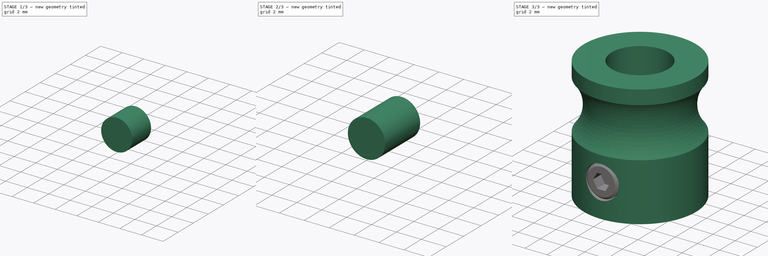
[diagram: build sequence overview — one tinted view per stage of 3, left to right]
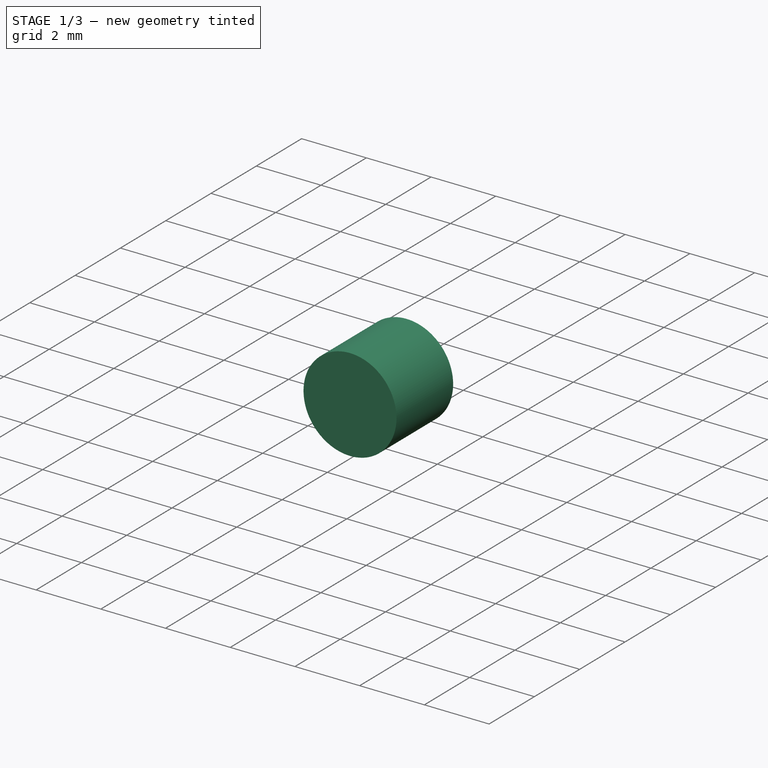
[diagram: stage 1 of 3 — iso view after this stage's code; geometry added in this stage tinted green]
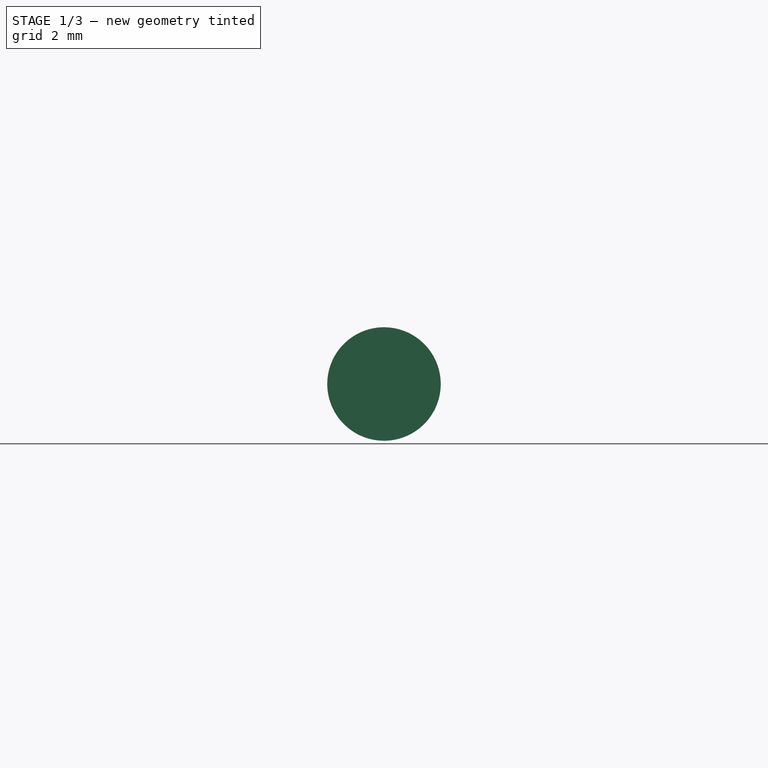
[diagram: stage 1 of 3 — front view after this stage's code; geometry added in this stage tinted green]
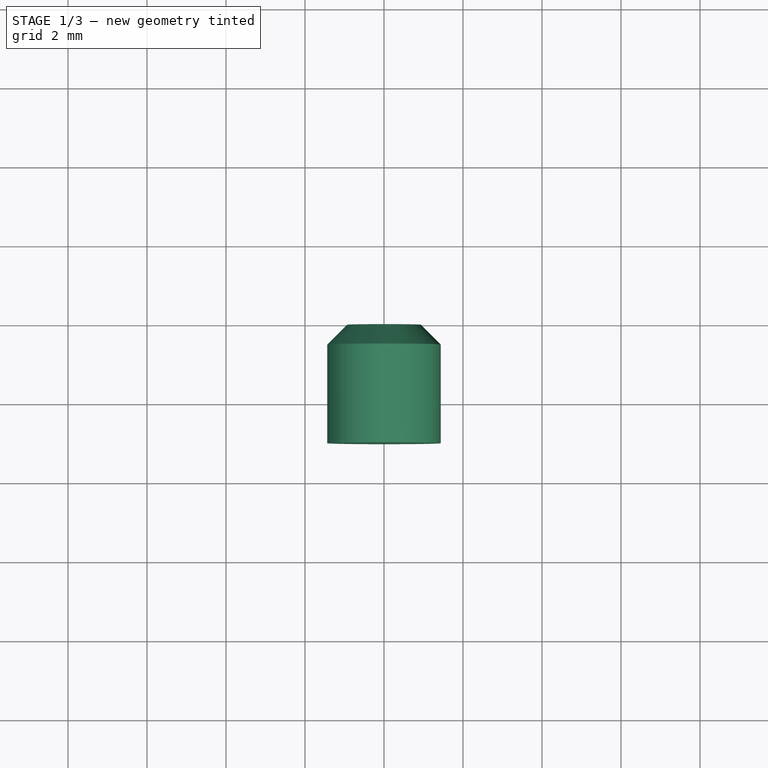
[diagram: stage 1 of 3 — top view after this stage's code; geometry added in this stage tinted green]
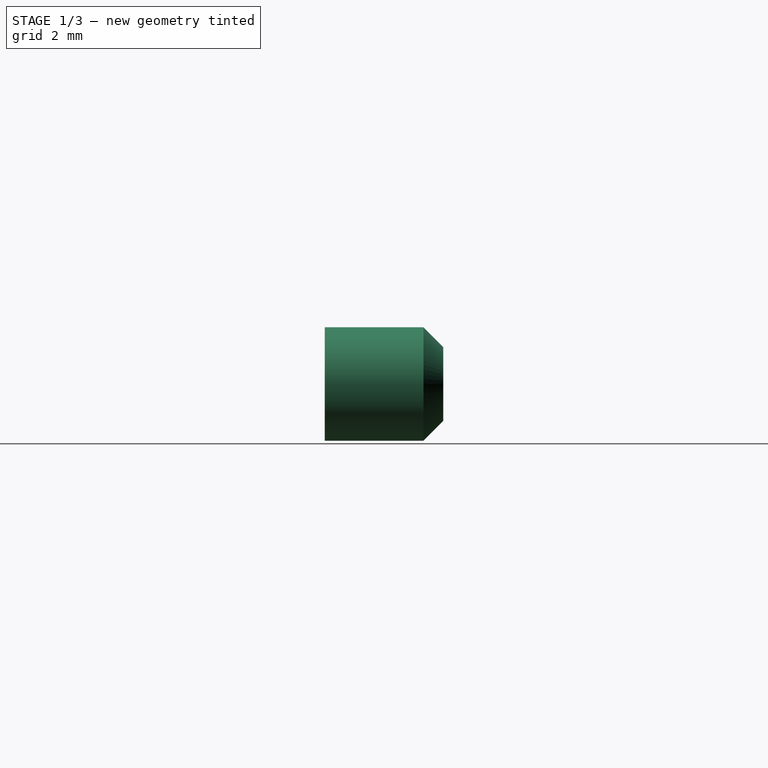
[diagram: stage 1 of 3 — right view after this stage's code; geometry added in this stage tinted green]
FCSTD DOCUMENT  (FreeCAD 0.16R6706 (Git))
Label: feeder_pulley_9mm
License: CreativeCommons Attribution-ShareAlike
LicenseURL: http://creativecommons.org/licenses/by-sa/4.0/
objects: Sketcher::SketchObject×4, PartDesign::Pad×2, PartDesign::Chamfer×2, PartDesign::Revolution×1, Part::Cut×1, PartDesign::Pocket×1
note: 15 computed .brp shape members not serialized (recipe doc carries the construction recipe); baked Part::Feature solids carry a one-line shape summary decoded from their .brp

FEATURE [Sketcher::SketchObject] Sketch
  Placement = pos=(0,-5,52) rot=(-1,0,0;4.71239rad)
  sketch-geometry (1):
    g0: Circle CenterX=0 CenterY=0 CenterZ=0 NormalX=0 NormalY=0 NormalZ=1 Radius=1.43658
  constraints (1):
    c: Coincident(g0,g-1)
FEATURE [PartDesign::Pad] Pad
  Length = 3
  Length2 = 100
  Placement = pos=(0,-5,52) rot=(-1,0,0;4.71239rad)
  Reversed = true
  Sketch = -> Sketch
  Type = 0
FEATURE [PartDesign::Chamfer] Chamfer
  Base = -> Pad [Edge3]
  Placement = pos=(0,-5,52) rot=(-1,0,0;4.71239rad)
  Size = 0.5
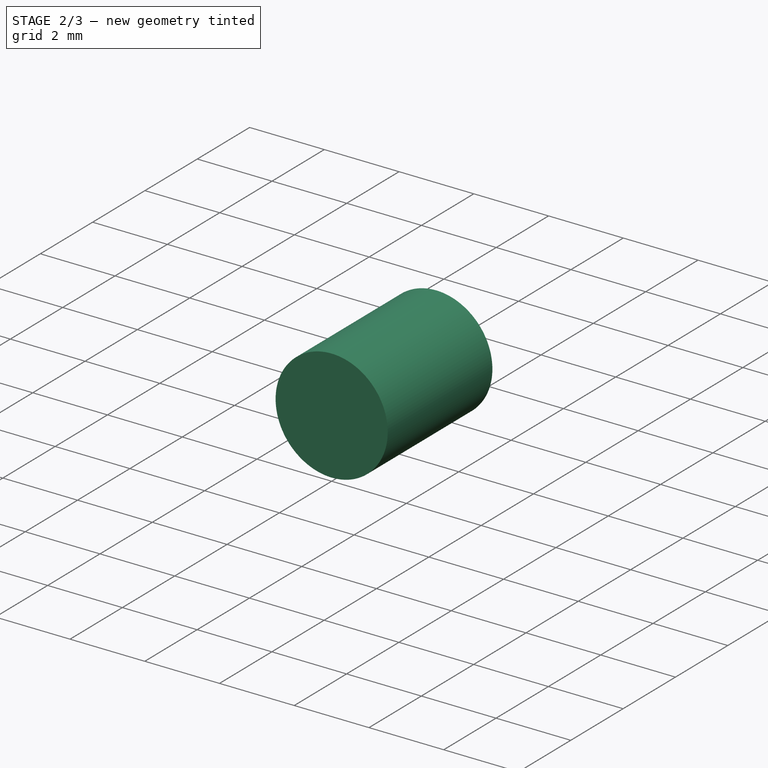
[diagram: stage 2 of 3 — iso view after this stage's code; geometry added in this stage tinted green]
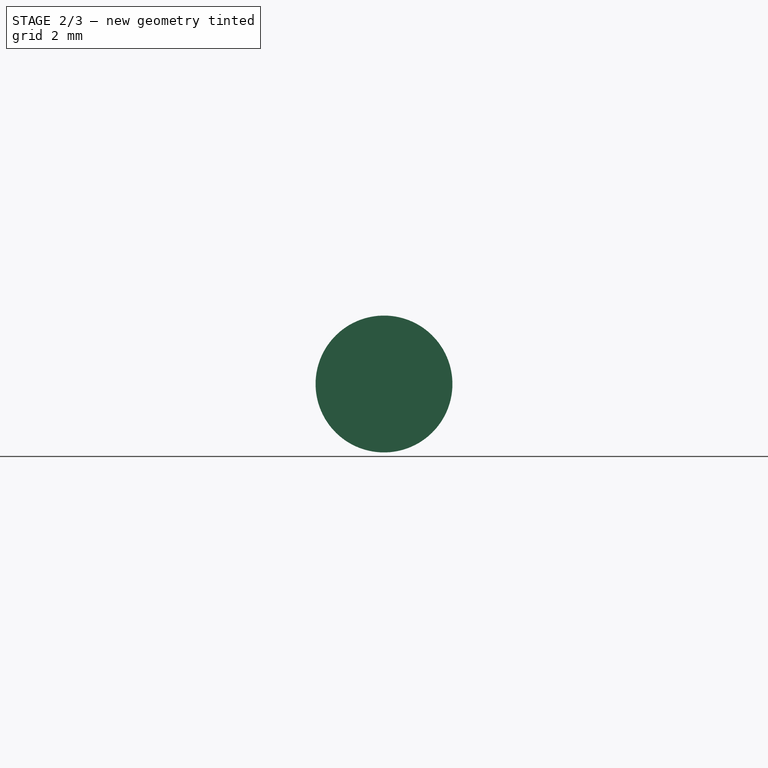
[diagram: stage 2 of 3 — front view after this stage's code; geometry added in this stage tinted green]
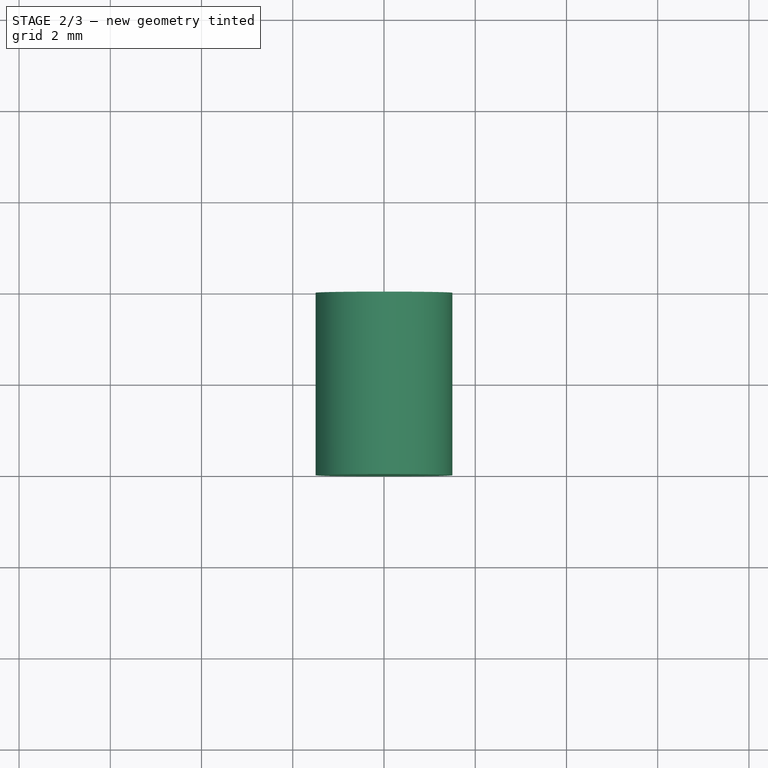
[diagram: stage 2 of 3 — top view after this stage's code; geometry added in this stage tinted green]
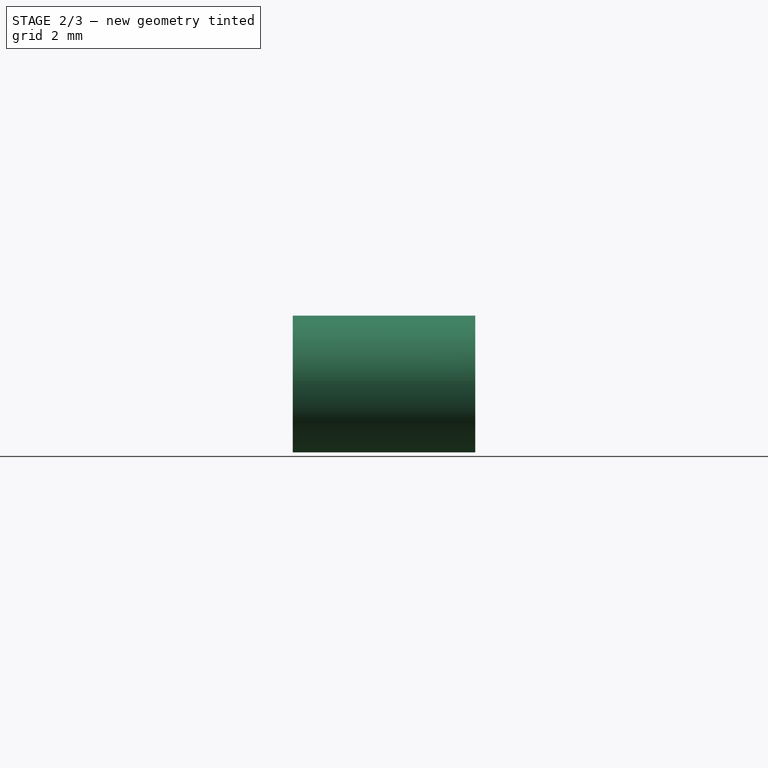
[diagram: stage 2 of 3 — right view after this stage's code; geometry added in this stage tinted green]
FEATURE [Sketcher::SketchObject] Sketch013
  Placement = pos=(0,-6,52) rot=(1,0,0;1.5708rad)
  sketch-geometry (1):
    g0: Circle CenterX=0 CenterY=0 CenterZ=0 NormalX=0 NormalY=0 NormalZ=1 Radius=1.5
  constraints (2):
    c: Coincident(g0,g-1)
    c: Radius(g0) = 1.5
FEATURE [PartDesign::Pad] Pad007
  Length = 4
  Length2 = 100
  Placement = pos=(0,-6,52) rot=(1,0,0;1.5708rad)
  Reversed = true
  Sketch = -> Sketch013
  Type = 0
FEATURE [PartDesign::Chamfer] Chamfer001
  Base = -> Chamfer [Edge3]
  Placement = pos=(0,-5,52) rot=(-1,0,0;4.71239rad)
  Size = 0.2
FEATURE [Sketcher::SketchObject] Sketch014
  Placement = pos=(0,-5,52) rot=(1,0,0;1.5708rad)
  Support = -> Chamfer001 [Face4]
  sketch-geometry (7):
    g0: LineSegment StartX=0.370184 StartY=-0.652276 StartZ=0 EndX=0.749979 EndY=-0.00554945 EndZ=0
    g1: LineSegment StartX=0.749979 StartY=-0.00554945 StartZ=0 EndX=0.379796 EndY=0.646727 EndZ=0
    g2: LineSegment StartX=0.379796 StartY=0.646727 StartZ=0 EndX=-0.370184 EndY=0.652276 EndZ=0
    g3: LineSegment StartX=-0.370184 StartY=0.652276 StartZ=0 EndX=-0.749979 EndY=0.00554945 EndZ=0
    g4: LineSegment StartX=-0.749979 StartY=0.00554945 StartZ=0 EndX=-0.379796 EndY=-0.646727 EndZ=0
    g5: LineSegment StartX=-0.379796 StartY=-0.646727 StartZ=0 EndX=0.370184 EndY=-0.652276 EndZ=0
    g6: Circle [constr] CenterX=0 CenterY=0 CenterZ=0 NormalX=0 NormalY=0 NormalZ=1 Radius=0.75
  constraints (15):
    c: Coincident(g0,g1)
    c: Coincident(g1,g2)
    c: Coincident(g2,g3)
    c: Coincident(g3,g4)
    c: Coincident(g4,g5)
    c: Coincident(g5,g0)
    c: Equal(g0, g1-g5) x5
    c: PointOnObject(g0,g6)
    c: PointOnObject(g1,g6)
    c: PointOnObject(g2,g6)
    c: PointOnObject(g3,g6)
    c: PointOnObject(g4,g6)
    c: PointOnObject(g5,g6)
    c: Coincident(g6,g-1)
    c: Radius(g6) = 0.75
FEATURE [PartDesign::Pocket] Pocket
  Length = 1
  Placement = pos=(0,-5,52) rot=(-1,0,0;4.71239rad)
  Sketch = -> Sketch014
  Type = 0
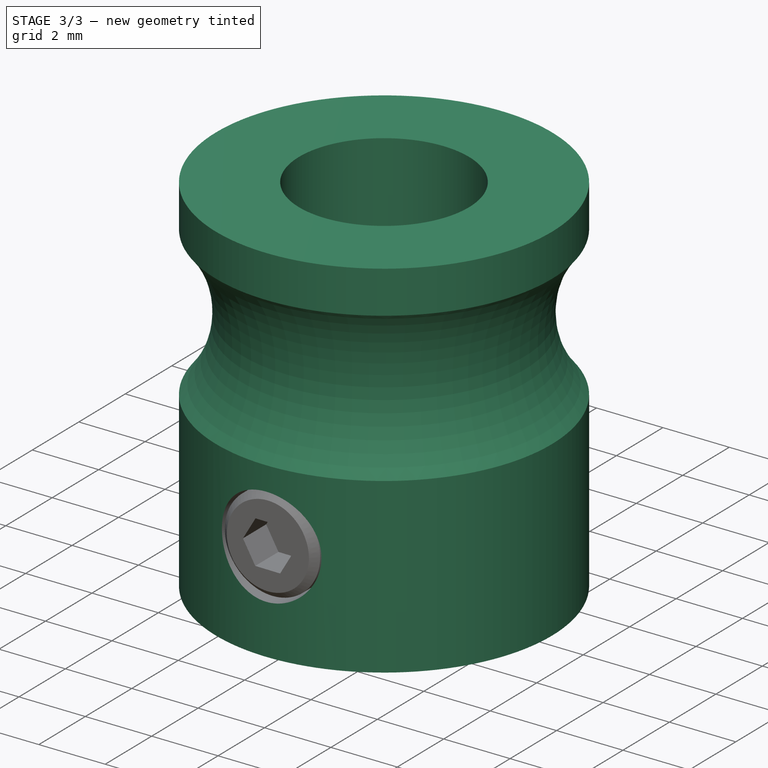
[diagram: stage 3 of 3 — iso view after this stage's code; geometry added in this stage tinted green]
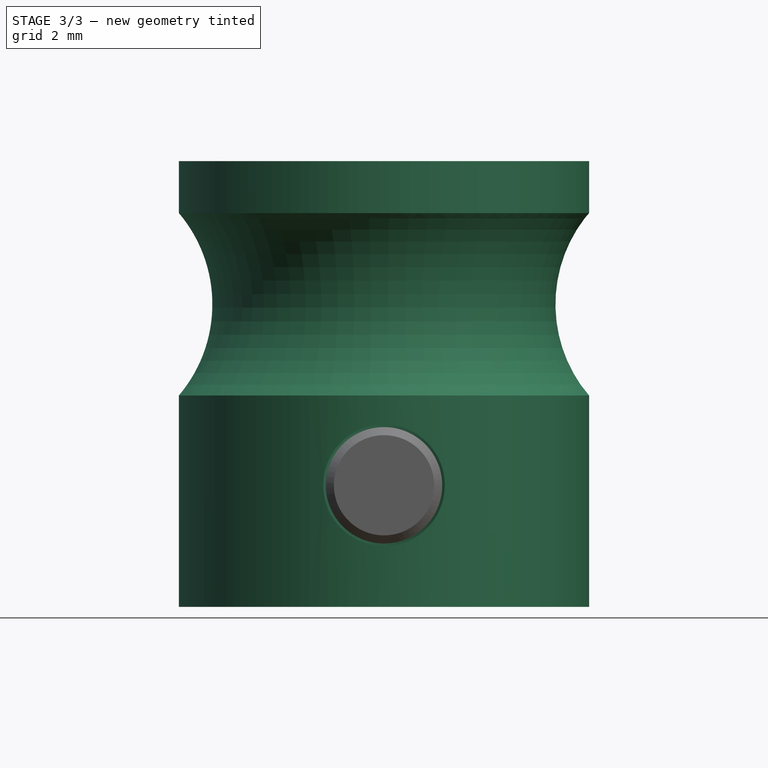
[diagram: stage 3 of 3 — front view after this stage's code; geometry added in this stage tinted green]
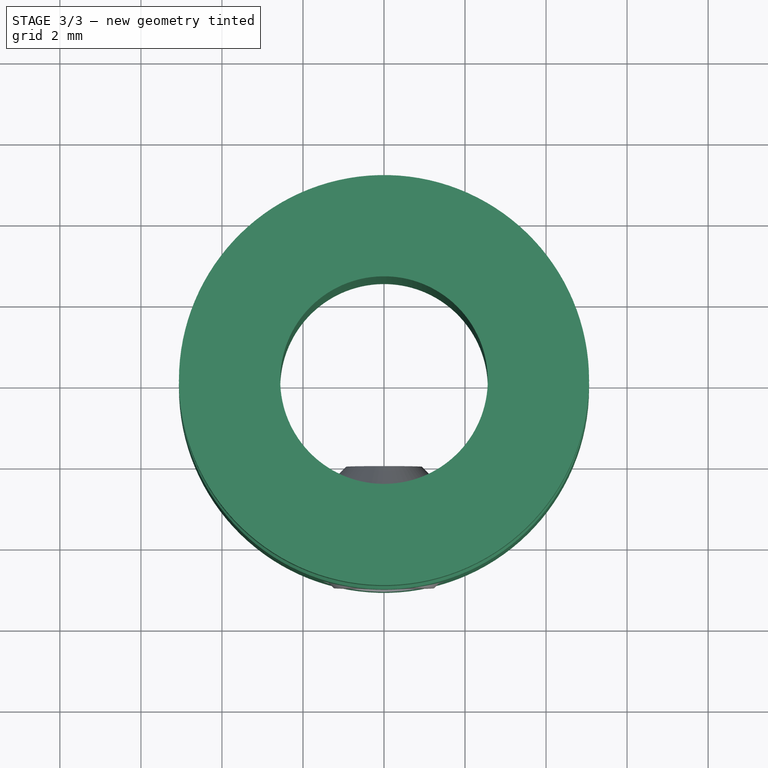
[diagram: stage 3 of 3 — top view after this stage's code; geometry added in this stage tinted green]
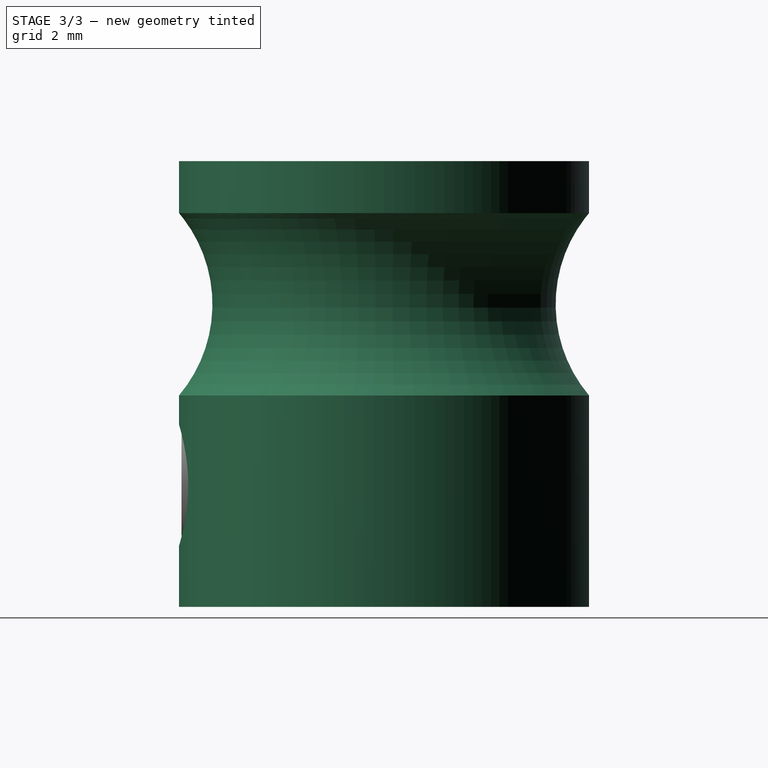
[diagram: stage 3 of 3 — right view after this stage's code; geometry added in this stage tinted green]
FEATURE [Sketcher::SketchObject] Sketch012
  Placement = pos=(0,0,49) rot=(1,0,0;1.5708rad)
  sketch-geometry (6):
    g0: LineSegment StartX=-2.56211 StartY=0 StartZ=0 EndX=-5.06211 EndY=0 EndZ=0
    g1: LineSegment StartX=-5.06211 StartY=11 StartZ=0 EndX=-2.56211 EndY=11 EndZ=0
    g2: LineSegment StartX=-2.56211 StartY=11 StartZ=0 EndX=-2.56211 EndY=0 EndZ=0
    g3: LineSegment StartX=-5.06211 StartY=11 StartZ=0 EndX=-5.06211 EndY=9.71861 EndZ=0
    g4: LineSegment StartX=-5.06211 StartY=0 StartZ=0 EndX=-5.06211 EndY=5.21762 EndZ=0
    g5: ArcOfCircle CenterX=-7.71913 CenterY=7.46811 CenterZ=0 NormalX=0 NormalY=0 NormalZ=1 Radius=3.48202 StartAngle=5.58044 EndAngle=6.98594
  constraints (15):
    c: Coincident(g1,g2)
    c: Coincident(g2,g0)
    c: Horizontal(g0)
    c: Horizontal(g1)
    c: Vertical(g2)
    c: PointOnObject(g0,g-1)
    c: DistanceX(g1,g1) = 2.5
    c: Coincident(g3,g1)
    c: Vertical(g3)
    c: Coincident(g4,g0)
    c: Vertical(g4)
    c: Coincident(g4,g5)
    c: Coincident(g5,g3)
    c: Equal(g1,g0)
    c: DistanceY(g0,g1) = 11
FEATURE [PartDesign::Revolution] Revolution
  Angle = 360
  Axis = (0,0,1)
  Base = (0,0,49)
  Placement = pos=(0,0,49) rot=(1,0,0;1.5708rad)
  ReferenceAxis = -> Sketch012 [V_Axis]
  Sketch = -> Sketch012
FEATURE [Part::Cut] Cut
  Base = -> Revolution
  Tool = -> Pad007
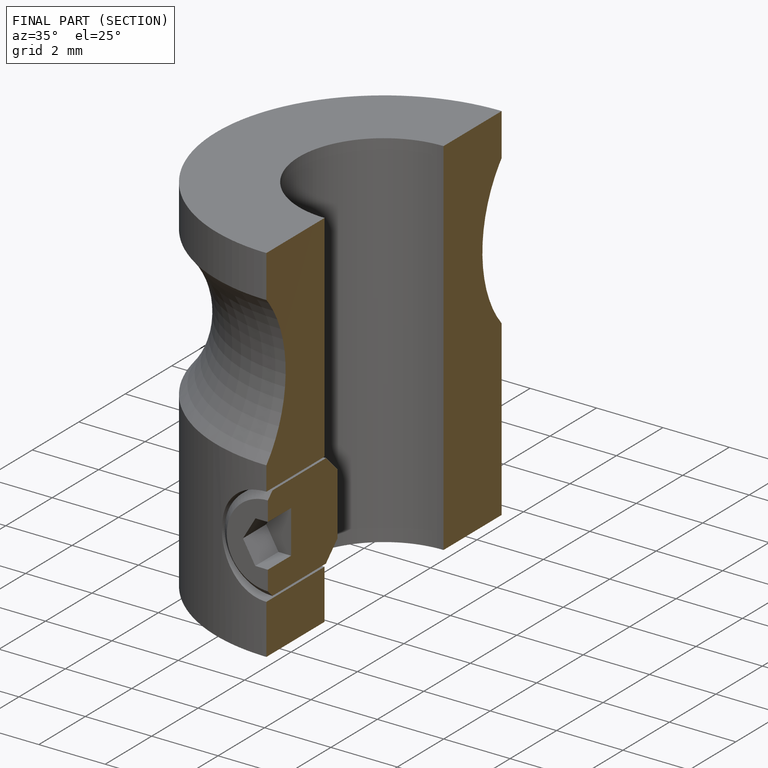
[diagram: finished part — half-section view (interior)]
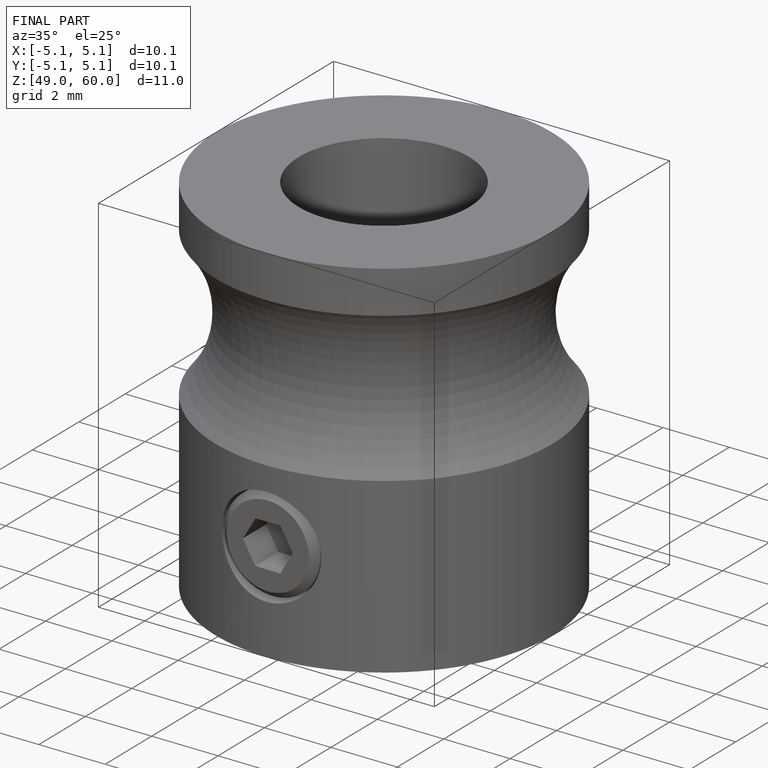
[diagram: finished part — iso view with bounding-box wireframe]
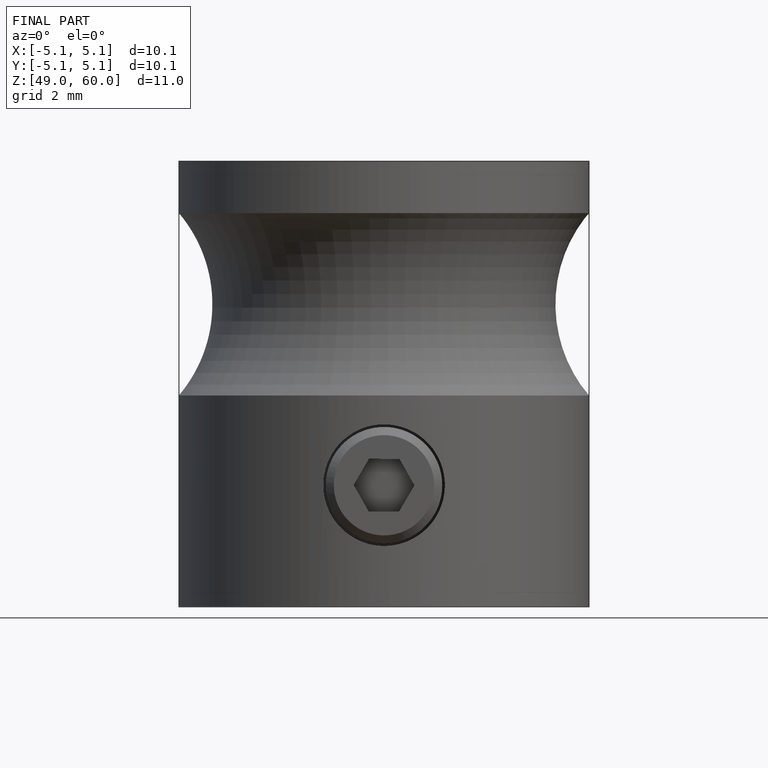
[diagram: finished part — front view with bounding-box wireframe]
